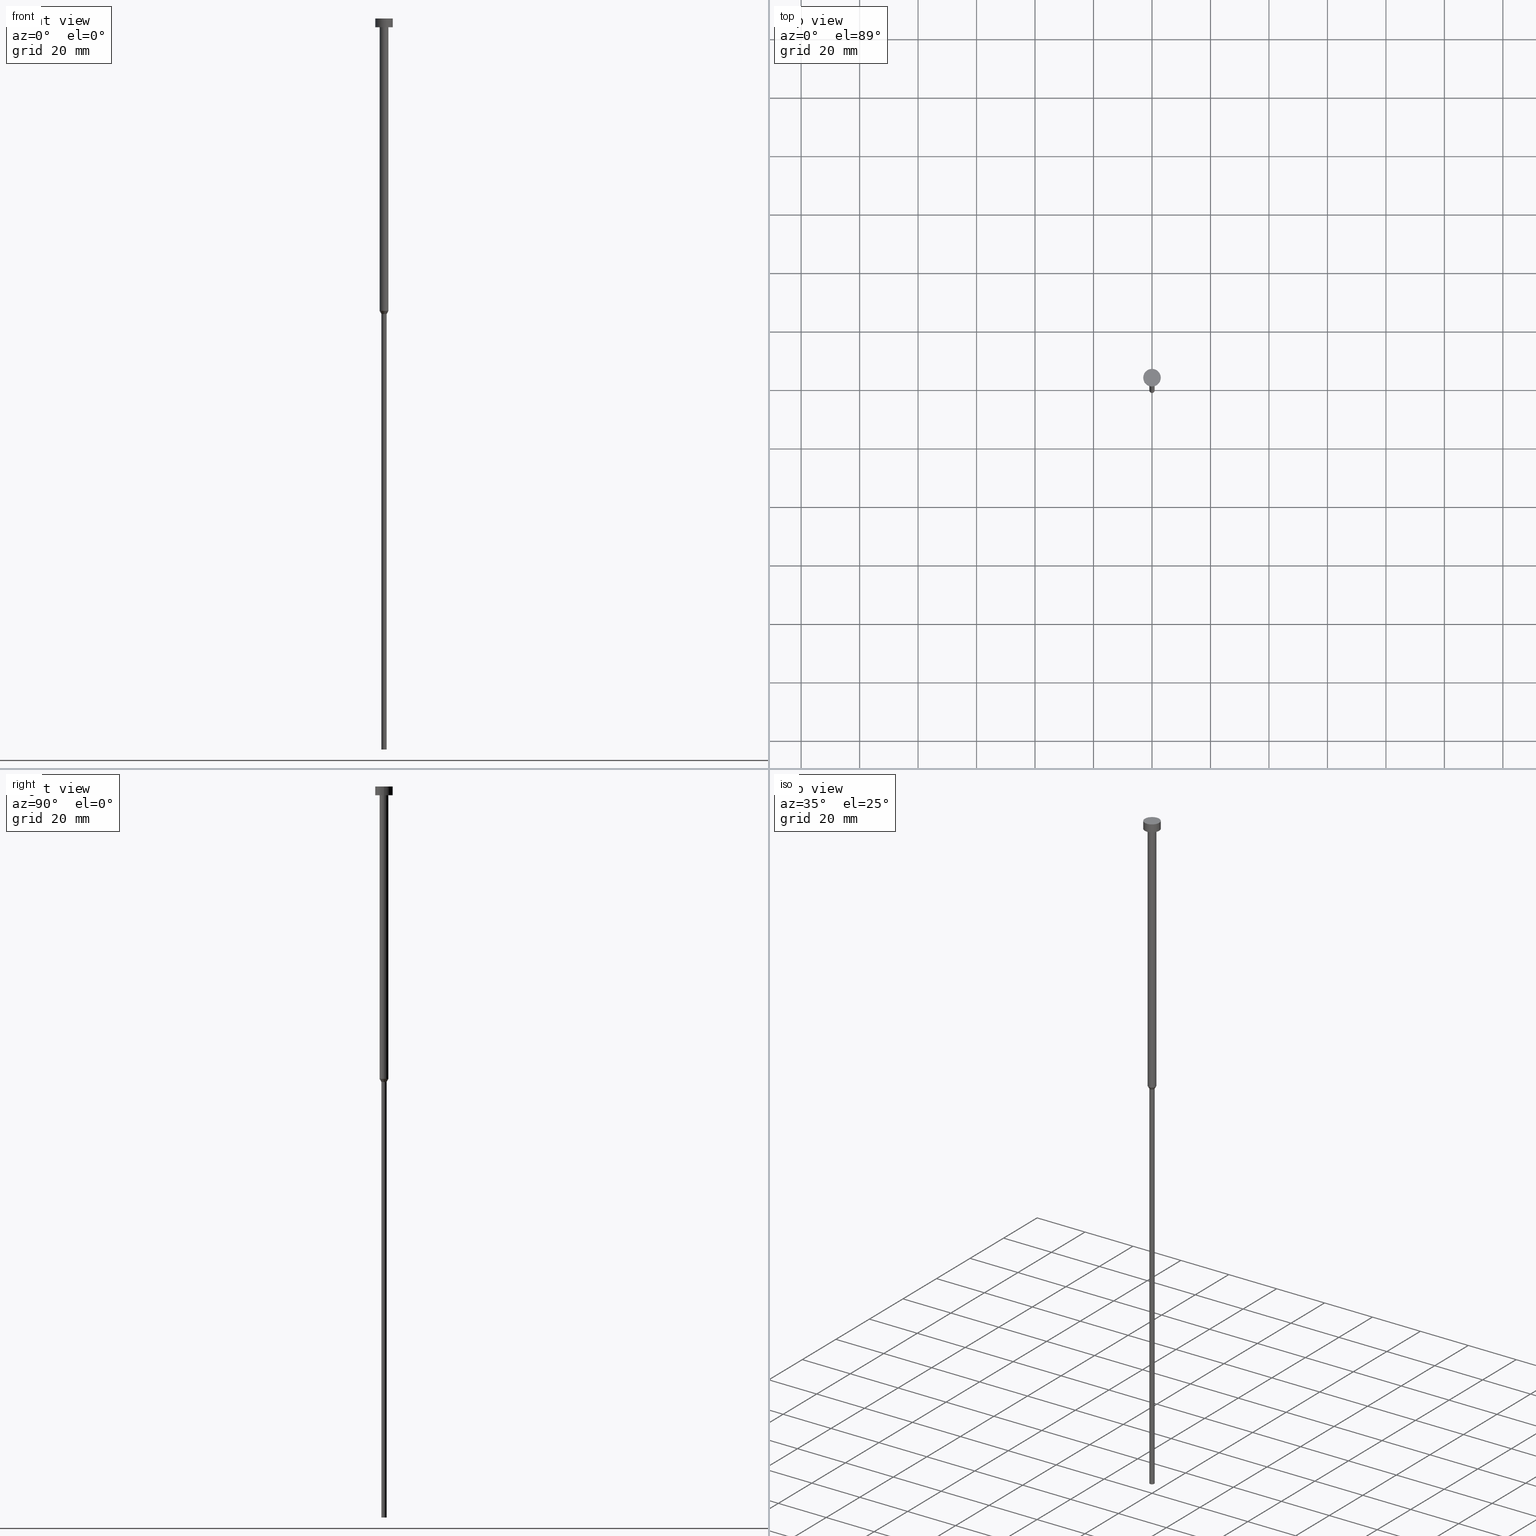
[diagram: canonical four-view strip — front | top / right | iso, engineering-drawing reading convention]
A machine part, canonical four-view strip (front | top / right | iso — engineering-drawing reading convention). The complete STEP part file that produces these views, byte-faithful:
ISO-10303-21;
HEADER;
FILE_DESCRIPTION (( 'STEP AP203' ),
    '1' );
FILE_NAME ('4469.STEP',
    '2023-02-13T09:01:37',
    ( '' ),
    ( '' ),
    'SwSTEP 2.0',
    'SolidWorks 2019',
    '' );
FILE_SCHEMA (( 'CONFIG_CONTROL_DESIGN' ));
ENDSEC;

DATA;
#1 = EDGE_CURVE ( 'NONE', #18, #316, #262, .T. ) ;
#2 = DIRECTION ( 'NONE',  ( -0.000000000000000000, -0.000000000000000000, 1.000000000000000000 ) ) ;
#3 = DIRECTION ( 'NONE',  ( 1.000000000000000000, 0.000000000000000000, 0.000000000000000000 ) ) ;
#4 = DIRECTION ( 'NONE',  ( -0.000000000000000000, -0.000000000000000000, 1.000000000000000000 ) ) ;
#5 = CARTESIAN_POINT ( 'NONE',  ( -3.000000000000000000, 3.673940397442059868E-16, -3.673940397442059868E-16 ) ) ;
#6 = AXIS2_PLACEMENT_3D ( 'NONE', #203, #299, #3 ) ;
#7 = CARTESIAN_POINT ( 'NONE',  ( 0.000000000000000000, 0.000000000000000000, -100.0000000000000000 ) ) ;
#8 = VERTEX_POINT ( 'NONE', #147 ) ;
#9 = MANIFOLD_SOLID_BREP ( 'Rotovat1', #232 ) ;
#10 = PERSON_AND_ORGANIZATION_ROLE ( 'design_supplier' ) ;
#11 = ADVANCED_FACE ( 'NONE', ( #267 ), #201, .T. ) ;
#12 = DIRECTION ( 'NONE',  ( -0.000000000000000000, -0.000000000000000000, 1.000000000000000000 ) ) ;
#13 = AXIS2_PLACEMENT_3D ( 'NONE', #258, #12, #342 ) ;
#14 = ORIENTED_EDGE ( 'NONE', *, *, #220, .F. ) ;
#15 = VECTOR ( 'NONE', #135, 1000.000000000000000 ) ;
#16 = EDGE_LOOP ( 'NONE', ( #101, #68 ) ) ;
#17 = ADVANCED_FACE ( 'NONE', ( #223 ), #93, .T. ) ;
#18 = VERTEX_POINT ( 'NONE', #205 ) ;
#19 = SHAPE_DEFINITION_REPRESENTATION ( #22, #162 ) ;
#20 = DIRECTION ( 'NONE',  ( -0.000000000000000000, -0.000000000000000000, 1.000000000000000000 ) ) ;
#21 = CARTESIAN_POINT ( 'NONE',  ( 0.000000000000000000, 0.000000000000000000, -250.0000000000000000 ) ) ;
#22 = PRODUCT_DEFINITION_SHAPE ( 'NONE', 'NONE',  #284 ) ;
#23 = ADVANCED_FACE ( 'NONE', ( #320, #272 ), #80, .T. ) ;
#24 = DIRECTION ( 'NONE',  ( -0.000000000000000000, -0.000000000000000000, 1.000000000000000000 ) ) ;
#25 = DIRECTION ( 'NONE',  ( -0.000000000000000000, -0.000000000000000000, 1.000000000000000000 ) ) ;
#26 = VECTOR ( 'NONE', #28, 1000.000000000000227 ) ;
#27 = AXIS2_PLACEMENT_3D ( 'NONE', #250, #116, #89 ) ;
#28 = DIRECTION ( 'NONE',  ( -0.5000000000000002220, 6.123233995736768501E-17, 0.8660254037844384856 ) ) ;
#29 = DIRECTION ( 'NONE',  ( 1.000000000000000000, 0.000000000000000000, 0.000000000000000000 ) ) ;
#30 = DIRECTION ( 'NONE',  ( -0.000000000000000000, -0.000000000000000000, 1.000000000000000000 ) ) ;
#31 = ORIENTED_EDGE ( 'NONE', *, *, #99, .T. ) ;
#32 = PERSON_AND_ORGANIZATION ( #44, #285 ) ;
#33 = CARTESIAN_POINT ( 'NONE',  ( 0.000000000000000000, 0.000000000000000000, 0.000000000000000000 ) ) ;
#34 = PERSON_AND_ORGANIZATION ( #44, #285 ) ;
#35 = CARTESIAN_POINT ( 'NONE',  ( -0.9000000000000000222, 1.102182119232617788E-16, 0.000000000000000000 ) ) ;
#36 = EDGE_LOOP ( 'NONE', ( #287, #125 ) ) ;
#37 = PERSON_AND_ORGANIZATION ( #44, #285 ) ;
#38 = CIRCLE ( 'NONE', #182, 1.500000000000000000 ) ;
#39 = ORIENTED_EDGE ( 'NONE', *, *, #174, .F. ) ;
#40 = EDGE_CURVE ( 'NONE', #316, #124, #354, .T. ) ;
#41 = COORDINATED_UNIVERSAL_TIME_OFFSET ( 1, 0, .AHEAD. ) ;
#42 = ORIENTED_EDGE ( 'NONE', *, *, #128, .F. ) ;
#43 = CYLINDRICAL_SURFACE ( 'NONE', #127, 0.9000000000000000222 ) ;
#44 = PERSON ( 'NEUR�EN�', 'NEUR�EN�', 'NEUR�EN�', ('NEUR�EN�'), ('NEUR�EN�'), ('NEUR�EN�') ) ;
#45 = DIRECTION ( 'NONE',  ( 1.000000000000000000, 0.000000000000000000, 0.000000000000000000 ) ) ;
#46 = APPROVAL_PERSON_ORGANIZATION ( #159, #301, #94 ) ;
#47 = DIRECTION ( 'NONE',  ( 1.000000000000000000, 0.000000000000000000, 0.000000000000000000 ) ) ;
#48 = ORIENTED_EDGE ( 'NONE', *, *, #65, .F. ) ;
#49 = VECTOR ( 'NONE', #82, 1000.000000000000000 ) ;
#50 = DIRECTION ( 'NONE',  ( 1.000000000000000000, 0.000000000000000000, 0.000000000000000000 ) ) ;
#51 = CONICAL_SURFACE ( 'NONE', #102, 1.500000000000000000, 0.5235987755982991487 ) ;
#52 = APPROVAL ( #263, 'NEUR�EN�' ) ;
#53 = CARTESIAN_POINT ( 'NONE',  ( 0.9000000000000000222, 0.000000000000000000, -101.0392304845413349 ) ) ;
#54 = EDGE_CURVE ( 'NONE', #291, #18, #180, .T. ) ;
#55 = AXIS2_PLACEMENT_3D ( 'NONE', #153, #25, #152 ) ;
#56 = CARTESIAN_POINT ( 'NONE',  ( 0.000000000000000000, 0.000000000000000000, -250.0000000000000000 ) ) ;
#57 = AXIS2_PLACEMENT_3D ( 'NONE', #214, #187, #29 ) ;
#58 = ORIENTED_EDGE ( 'NONE', *, *, #1, .F. ) ;
#59 = CARTESIAN_POINT ( 'NONE',  ( 0.000000000000000000, 0.000000000000000000, -3.673940397442059868E-16 ) ) ;
#60 = ADVANCED_FACE ( 'NONE', ( #241 ), #355, .T. ) ;
#61 = AXIS2_PLACEMENT_3D ( 'NONE', #71, #308, #190 ) ;
#62 = EDGE_LOOP ( 'NONE', ( #31, #72, #230, #39 ) ) ;
#63 = LINE ( 'NONE', #183, #97 ) ;
#64 = CALENDAR_DATE ( 2023, 13, 2 ) ;
#65 = EDGE_CURVE ( 'NONE', #18, #98, #129, .T. ) ;
#66 = CC_DESIGN_SECURITY_CLASSIFICATION ( #139, ( #155 ) ) ;
#67 =( NAMED_UNIT ( * ) SI_UNIT ( $, .STERADIAN. ) SOLID_ANGLE_UNIT ( ) );
#68 = ORIENTED_EDGE ( 'NONE', *, *, #193, .T. ) ;
#69 = PERSON_AND_ORGANIZATION ( #44, #285 ) ;
#70 = CARTESIAN_POINT ( 'NONE',  ( 0.9000000000000000222, 0.000000000000000000, -250.0000000000000000 ) ) ;
#71 = CARTESIAN_POINT ( 'NONE',  ( 0.000000000000000000, 0.000000000000000000, -101.0392304845413349 ) ) ;
#72 = ORIENTED_EDGE ( 'NONE', *, *, #128, .T. ) ;
#73 = EDGE_LOOP ( 'NONE', ( #138, #255, #295, #142 ) ) ;
#74 = LOCAL_TIME ( 10, 1, 37.00000000000000000, #216 ) ;
#75 = VERTEX_POINT ( 'NONE', #83 ) ;
#76 = APPLICATION_CONTEXT ( 'configuration controlled 3d designs of mechanical parts and assemblies' ) ;
#77 = DIRECTION ( 'NONE',  ( 1.000000000000000000, 0.000000000000000000, 0.000000000000000000 ) ) ;
#78 = CC_DESIGN_PERSON_AND_ORGANIZATION_ASSIGNMENT ( #248, #252, ( #151 ) ) ;
#79 = CC_DESIGN_APPROVAL ( #181, ( #284 ) ) ;
#80 = PLANE ( 'NONE',  #243 ) ;
#81 = EDGE_CURVE ( 'NONE', #8, #110, #341, .T. ) ;
#82 = DIRECTION ( 'NONE',  ( -0.000000000000000000, -0.000000000000000000, 1.000000000000000000 ) ) ;
#83 = CARTESIAN_POINT ( 'NONE',  ( -3.000000000000000000, 3.673940397442059868E-16, -3.000000000000000888 ) ) ;
#84 = EDGE_CURVE ( 'NONE', #110, #8, #103, .T. ) ;
#85 = CARTESIAN_POINT ( 'NONE',  ( 0.000000000000000000, 0.000000000000000000, 0.000000000000000000 ) ) ;
#86 = AXIS2_PLACEMENT_3D ( 'NONE', #234, #351, #77 ) ;
#87 = DATE_TIME_ROLE ( 'creation_date' ) ;
#88 = AXIS2_PLACEMENT_3D ( 'NONE', #225, #169, #45 ) ;
#89 = DIRECTION ( 'NONE',  ( 1.000000000000000000, 0.000000000000000000, 0.000000000000000000 ) ) ;
#90 = APPROVAL_STATUS ( 'not_yet_approved' ) ;
#91 = CYLINDRICAL_SURFACE ( 'NONE', #326, 3.000000000000000000 ) ;
#92 = ORIENTED_EDGE ( 'NONE', *, *, #40, .T. ) ;
#93 = CYLINDRICAL_SURFACE ( 'NONE', #13, 0.9000000000000000222 ) ;
#94 = APPROVAL_ROLE ( '' ) ;
#95 = AXIS2_PLACEMENT_3D ( 'NONE', #21, #105, #156 ) ;
#96 = EDGE_LOOP ( 'NONE', ( #14, #161, #219, #346 ) ) ;
#97 = VECTOR ( 'NONE', #4, 1000.000000000000000 ) ;
#98 = VERTEX_POINT ( 'NONE', #246 ) ;
#99 = EDGE_CURVE ( 'NONE', #300, #75, #292, .T. ) ;
#100 = ORIENTED_EDGE ( 'NONE', *, *, #220, .T. ) ;
#101 = ORIENTED_EDGE ( 'NONE', *, *, #215, .T. ) ;
#102 = AXIS2_PLACEMENT_3D ( 'NONE', #242, #2, #249 ) ;
#103 = CIRCLE ( 'NONE', #86, 0.9000000000000000222 ) ;
#104 = DIRECTION ( 'NONE',  ( -0.000000000000000000, -0.000000000000000000, 1.000000000000000000 ) ) ;
#105 = DIRECTION ( 'NONE',  ( 0.000000000000000000, 0.000000000000000000, -1.000000000000000000 ) ) ;
#106 = DIRECTION ( 'NONE',  ( -0.000000000000000000, -0.000000000000000000, 1.000000000000000000 ) ) ;
#107 = AXIS2_PLACEMENT_3D ( 'NONE', #294, #120, #47 ) ;
#108 = AXIS2_PLACEMENT_3D ( 'NONE', #33, #106, #136 ) ;
#109 = CARTESIAN_POINT ( 'NONE',  ( 0.000000000000000000, 0.000000000000000000, -3.673940397442059868E-16 ) ) ;
#110 = VERTEX_POINT ( 'NONE', #70 ) ;
#111 = CC_DESIGN_PERSON_AND_ORGANIZATION_ASSIGNMENT ( #69, #165, ( #139 ) ) ;
#112 = DIRECTION ( 'NONE',  ( -0.000000000000000000, -0.000000000000000000, 1.000000000000000000 ) ) ;
#113 = DIRECTION ( 'NONE',  ( 1.000000000000000000, 0.000000000000000000, 0.000000000000000000 ) ) ;
#114 = ADVANCED_FACE ( 'NONE', ( #353 ), #43, .T. ) ;
#115 = LOCAL_TIME ( 10, 1, 37.00000000000000000, #118 ) ;
#116 = DIRECTION ( 'NONE',  ( -0.000000000000000000, -0.000000000000000000, 1.000000000000000000 ) ) ;
#117 = EDGE_LOOP ( 'NONE', ( #283, #196, #304, #58 ) ) ;
#118 = COORDINATED_UNIVERSAL_TIME_OFFSET ( 1, 0, .AHEAD. ) ;
#119 = DATE_AND_TIME ( #336, #74 ) ;
#120 = DIRECTION ( 'NONE',  ( -0.000000000000000000, -0.000000000000000000, 1.000000000000000000 ) ) ;
#121 = AXIS2_PLACEMENT_3D ( 'NONE', #257, #140, #146 ) ;
#122 = ORIENTED_EDGE ( 'NONE', *, *, #123, .F. ) ;
#123 = EDGE_CURVE ( 'NONE', #144, #316, #237, .T. ) ;
#124 = VERTEX_POINT ( 'NONE', #131 ) ;
#125 = ORIENTED_EDGE ( 'NONE', *, *, #157, .T. ) ;
#126 = APPROVAL_DATE_TIME ( #200, #52 ) ;
#127 = AXIS2_PLACEMENT_3D ( 'NONE', #229, #231, #50 ) ;
#128 = EDGE_CURVE ( 'NONE', #75, #280, #297, .T. ) ;
#129 = LINE ( 'NONE', #323, #134 ) ;
#130 = AXIS2_PLACEMENT_3D ( 'NONE', #186, #325, #340 ) ;
#131 = CARTESIAN_POINT ( 'NONE',  ( 1.500000000000000000, 0.000000000000000000, -3.000000000000000888 ) ) ;
#132 = PRODUCT_RELATED_PRODUCT_CATEGORY ( 'detail', '', ( #151 ) ) ;
#133 = CARTESIAN_POINT ( 'NONE',  ( -0.9000000000000000222, 1.102182119232617788E-16, -101.0392304845413349 ) ) ;
#134 = VECTOR ( 'NONE', #210, 1000.000000000000000 ) ;
#135 = DIRECTION ( 'NONE',  ( -0.000000000000000000, -0.000000000000000000, 1.000000000000000000 ) ) ;
#136 = DIRECTION ( 'NONE',  ( 1.000000000000000000, 0.000000000000000000, 0.000000000000000000 ) ) ;
#137 = ADVANCED_FACE ( 'NONE', ( #154 ), #313, .T. ) ;
#138 = ORIENTED_EDGE ( 'NONE', *, *, #198, .T. ) ;
#139 = SECURITY_CLASSIFICATION ( '', '', #260 ) ;
#140 = DIRECTION ( 'NONE',  ( -0.000000000000000000, -0.000000000000000000, 1.000000000000000000 ) ) ;
#141 = APPROVAL_DATE_TIME ( #143, #181 ) ;
#142 = ORIENTED_EDGE ( 'NONE', *, *, #40, .F. ) ;
#143 = DATE_AND_TIME ( #64, #254 ) ;
#144 = VERTEX_POINT ( 'NONE', #53 ) ;
#145 = VERTEX_POINT ( 'NONE', #207 ) ;
#146 = DIRECTION ( 'NONE',  ( 1.000000000000000000, 0.000000000000000000, 0.000000000000000000 ) ) ;
#147 = CARTESIAN_POINT ( 'NONE',  ( -0.9000000000000000222, 1.102182119232617788E-16, -250.0000000000000000 ) ) ;
#148 = UNCERTAINTY_MEASURE_WITH_UNIT (LENGTH_MEASURE( 1.000000000000000082E-05 ), #293, 'distance_accuracy_value', 'NONE');
#149 = CC_DESIGN_PERSON_AND_ORGANIZATION_ASSIGNMENT ( #188, #10, ( #155 ) ) ;
#150 = ORIENTED_EDGE ( 'NONE', *, *, #54, .T. ) ;
#151 = PRODUCT ( '4469', '4469', '', ( #330 ) ) ;
#152 = DIRECTION ( 'NONE',  ( 1.000000000000000000, 0.000000000000000000, 0.000000000000000000 ) ) ;
#153 = CARTESIAN_POINT ( 'NONE',  ( 0.000000000000000000, 0.000000000000000000, -100.0000000000000000 ) ) ;
#154 = FACE_OUTER_BOUND ( 'NONE', #117, .T. ) ;
#155 = PRODUCT_DEFINITION_FORMATION_WITH_SPECIFIED_SOURCE ( 'LIBOVOLN�', '', #151, .NOT_KNOWN. ) ;
#156 = DIRECTION ( 'NONE',  ( -1.000000000000000000, 0.000000000000000000, -0.000000000000000000 ) ) ;
#157 = EDGE_CURVE ( 'NONE', #98, #124, #202, .T. ) ;
#158 = DIRECTION ( 'NONE',  ( -0.000000000000000000, -0.000000000000000000, 1.000000000000000000 ) ) ;
#159 = PERSON_AND_ORGANIZATION ( #44, #285 ) ;
#160 = DIRECTION ( 'NONE',  ( 1.000000000000000000, 0.000000000000000000, 0.000000000000000000 ) ) ;
#161 = ORIENTED_EDGE ( 'NONE', *, *, #81, .T. ) ;
#162 = ADVANCED_BREP_SHAPE_REPRESENTATION ( '4469', ( #9, #6 ), #298 ) ;
#163 = APPROVAL_ROLE ( '' ) ;
#164 = EDGE_LOOP ( 'NONE', ( #264, #150, #228, #122 ) ) ;
#165 = PERSON_AND_ORGANIZATION_ROLE ( 'classification_officer' ) ;
#166 = CC_DESIGN_PERSON_AND_ORGANIZATION_ASSIGNMENT ( #34, #286, ( #155 ) ) ;
#167 = LINE ( 'NONE', #172, #206 ) ;
#168 = EDGE_LOOP ( 'NONE', ( #48, #345, #92, #311 ) ) ;
#169 = DIRECTION ( 'NONE',  ( -0.000000000000000000, -0.000000000000000000, 1.000000000000000000 ) ) ;
#170 = EDGE_LOOP ( 'NONE', ( #226, #328 ) ) ;
#171 = CIRCLE ( 'NONE', #194, 3.000000000000000000 ) ;
#172 = CARTESIAN_POINT ( 'NONE',  ( 0.9000000000000000222, 0.000000000000000000, 0.000000000000000000 ) ) ;
#173 = EDGE_LOOP ( 'NONE', ( #261, #100, #309, #191 ) ) ;
#174 = EDGE_CURVE ( 'NONE', #300, #145, #63, .T. ) ;
#175 = CARTESIAN_POINT ( 'NONE',  ( 0.000000000000000000, 0.000000000000000000, -1.836970198721029934E-16 ) ) ;
#176 = AXIS2_PLACEMENT_3D ( 'NONE', #59, #30, #160 ) ;
#177 = ADVANCED_FACE ( 'NONE', ( #332 ), #303, .T. ) ;
#178 = CARTESIAN_POINT ( 'NONE',  ( 0.000000000000000000, -3.000000000000000000, -3.000000000000000888 ) ) ;
#179 = DIRECTION ( 'NONE',  ( 1.000000000000000000, 0.000000000000000000, 0.000000000000000000 ) ) ;
#180 = LINE ( 'NONE', #274, #26 ) ;
#181 = APPROVAL ( #90, 'NEUR�EN�' ) ;
#182 = AXIS2_PLACEMENT_3D ( 'NONE', #7, #158, #307 ) ;
#183 = CARTESIAN_POINT ( 'NONE',  ( 3.000000000000000000, 0.000000000000000000, 0.000000000000000000 ) ) ;
#184 = DATE_AND_TIME ( #213, #233 ) ;
#185 = DIRECTION ( 'NONE',  ( 1.000000000000000000, 0.000000000000000000, 0.000000000000000000 ) ) ;
#186 = CARTESIAN_POINT ( 'NONE',  ( 0.000000000000000000, 0.000000000000000000, -3.000000000000000888 ) ) ;
#187 = DIRECTION ( 'NONE',  ( -0.000000000000000000, -0.000000000000000000, 1.000000000000000000 ) ) ;
#188 = PERSON_AND_ORGANIZATION ( #44, #285 ) ;
#189 = DIRECTION ( 'NONE',  ( -0.000000000000000000, -0.000000000000000000, 1.000000000000000000 ) ) ;
#190 = DIRECTION ( 'NONE',  ( 1.000000000000000000, 0.000000000000000000, 0.000000000000000000 ) ) ;
#191 = ORIENTED_EDGE ( 'NONE', *, *, #306, .F. ) ;
#192 = AXIS2_PLACEMENT_3D ( 'NONE', #175, #269, #221 ) ;
#193 = EDGE_CURVE ( 'NONE', #280, #145, #171, .T. ) ;
#194 = AXIS2_PLACEMENT_3D ( 'NONE', #109, #282, #275 ) ;
#195 = AXIS2_PLACEMENT_3D ( 'NONE', #239, #104, #179 ) ;
#196 = ORIENTED_EDGE ( 'NONE', *, *, #329, .T. ) ;
#197 = DIRECTION ( 'NONE',  ( -0.000000000000000000, -0.000000000000000000, 1.000000000000000000 ) ) ;
#198 = EDGE_CURVE ( 'NONE', #316, #18, #38, .T. ) ;
#199 = ORIENTED_EDGE ( 'NONE', *, *, #193, .F. ) ;
#200 = DATE_AND_TIME ( #344, #319 ) ;
#201 = PLANE ( 'NONE',  #192 ) ;
#202 = CIRCLE ( 'NONE', #195, 1.500000000000000000 ) ;
#203 = CARTESIAN_POINT ( 'NONE',  ( 0.000000000000000000, 0.000000000000000000, 0.000000000000000000 ) ) ;
#204 = AXIS2_PLACEMENT_3D ( 'NONE', #56, #20, #235 ) ;
#205 = CARTESIAN_POINT ( 'NONE',  ( -1.500000000000000000, 1.836970198721029934E-16, -100.0000000000000000 ) ) ;
#206 = VECTOR ( 'NONE', #197, 1000.000000000000000 ) ;
#207 = CARTESIAN_POINT ( 'NONE',  ( 3.000000000000000000, 0.000000000000000000, -3.673940397442059868E-16 ) ) ;
#208 = CARTESIAN_POINT ( 'NONE',  ( 1.500000000000000000, 0.000000000000000000, 0.000000000000000000 ) ) ;
#209 = CC_DESIGN_DATE_AND_TIME_ASSIGNMENT ( #119, #87, ( #284 ) ) ;
#210 = DIRECTION ( 'NONE',  ( -0.000000000000000000, -0.000000000000000000, 1.000000000000000000 ) ) ;
#211 = CYLINDRICAL_SURFACE ( 'NONE', #108, 1.500000000000000000 ) ;
#212 = CIRCLE ( 'NONE', #176, 3.000000000000000000 ) ;
#213 = CALENDAR_DATE ( 2023, 13, 2 ) ;
#214 = CARTESIAN_POINT ( 'NONE',  ( 0.000000000000000000, 0.000000000000000000, -3.000000000000000888 ) ) ;
#215 = EDGE_CURVE ( 'NONE', #145, #280, #212, .T. ) ;
#216 = COORDINATED_UNIVERSAL_TIME_OFFSET ( 1, 0, .AHEAD. ) ;
#217 = APPLICATION_PROTOCOL_DEFINITION ( 'international standard', 'config_control_design', 1994, #289 ) ;
#218 = FACE_OUTER_BOUND ( 'NONE', #73, .T. ) ;
#219 = ORIENTED_EDGE ( 'NONE', *, *, #306, .T. ) ;
#220 = EDGE_CURVE ( 'NONE', #8, #291, #279, .T. ) ;
#221 = DIRECTION ( 'NONE',  ( 1.000000000000000000, 0.000000000000000000, 0.000000000000000000 ) ) ;
#222 = APPLICATION_PROTOCOL_DEFINITION ( 'international standard', 'config_control_design', 1994, #76 ) ;
#223 = FACE_OUTER_BOUND ( 'NONE', #173, .T. ) ;
#224 = APPROVAL_ROLE ( '' ) ;
#225 = CARTESIAN_POINT ( 'NONE',  ( 0.000000000000000000, 0.000000000000000000, -101.0392304845413349 ) ) ;
#226 = ORIENTED_EDGE ( 'NONE', *, *, #99, .F. ) ;
#227 = COORDINATED_UNIVERSAL_TIME_OFFSET ( 1, 0, .AHEAD. ) ;
#228 = ORIENTED_EDGE ( 'NONE', *, *, #198, .F. ) ;
#229 = CARTESIAN_POINT ( 'NONE',  ( 0.000000000000000000, 0.000000000000000000, 0.000000000000000000 ) ) ;
#230 = ORIENTED_EDGE ( 'NONE', *, *, #215, .F. ) ;
#231 = DIRECTION ( 'NONE',  ( -0.000000000000000000, -0.000000000000000000, 1.000000000000000000 ) ) ;
#232 = CLOSED_SHELL ( 'NONE', ( #177, #265, #240, #17, #60, #114, #137, #236, #23, #290, #11 ) ) ;
#233 = LOCAL_TIME ( 10, 1, 37.00000000000000000, #41 ) ;
#234 = CARTESIAN_POINT ( 'NONE',  ( 0.000000000000000000, 0.000000000000000000, -250.0000000000000000 ) ) ;
#235 = DIRECTION ( 'NONE',  ( 1.000000000000000000, 0.000000000000000000, 0.000000000000000000 ) ) ;
#236 = ADVANCED_FACE ( 'NONE', ( #331 ), #337, .T. ) ;
#237 = LINE ( 'NONE', #324, #333 ) ;
#238 = CARTESIAN_POINT ( 'NONE',  ( -3.000000000000000000, 3.673940397442059868E-16, 0.000000000000000000 ) ) ;
#239 = CARTESIAN_POINT ( 'NONE',  ( 0.000000000000000000, 0.000000000000000000, -3.000000000000000888 ) ) ;
#240 = ADVANCED_FACE ( 'NONE', ( #247 ), #51, .T. ) ;
#241 = FACE_OUTER_BOUND ( 'NONE', #288, .T. ) ;
#242 = CARTESIAN_POINT ( 'NONE',  ( 0.000000000000000000, 0.000000000000000000, -100.0000000000000000 ) ) ;
#243 = AXIS2_PLACEMENT_3D ( 'NONE', #178, #273, #322 ) ;
#244 = CARTESIAN_POINT ( 'NONE',  ( 3.000000000000000000, 0.000000000000000000, -3.000000000000000888 ) ) ;
#245 = ORIENTED_EDGE ( 'NONE', *, *, #174, .T. ) ;
#246 = CARTESIAN_POINT ( 'NONE',  ( -1.500000000000000000, 1.836970198721029934E-16, -3.000000000000000888 ) ) ;
#247 = FACE_OUTER_BOUND ( 'NONE', #164, .T. ) ;
#248 = PERSON_AND_ORGANIZATION ( #44, #285 ) ;
#249 = DIRECTION ( 'NONE',  ( 1.000000000000000000, 0.000000000000000000, 0.000000000000000000 ) ) ;
#250 = CARTESIAN_POINT ( 'NONE',  ( 0.000000000000000000, 0.000000000000000000, 0.000000000000000000 ) ) ;
#251 = CIRCLE ( 'NONE', #121, 3.000000000000000000 ) ;
#252 = PERSON_AND_ORGANIZATION_ROLE ( 'design_owner' ) ;
#253 = CC_DESIGN_PERSON_AND_ORGANIZATION_ASSIGNMENT ( #37, #278, ( #284 ) ) ;
#254 = LOCAL_TIME ( 10, 1, 37.00000000000000000, #338 ) ;
#255 = ORIENTED_EDGE ( 'NONE', *, *, #65, .T. ) ;
#256 = CALENDAR_DATE ( 2023, 13, 2 ) ;
#257 = CARTESIAN_POINT ( 'NONE',  ( 0.000000000000000000, 0.000000000000000000, -3.000000000000000888 ) ) ;
#258 = CARTESIAN_POINT ( 'NONE',  ( 0.000000000000000000, 0.000000000000000000, 0.000000000000000000 ) ) ;
#259 = DESIGN_CONTEXT ( 'detailed design', #289, 'design' ) ;
#260 = SECURITY_CLASSIFICATION_LEVEL ( 'unclassified' ) ;
#261 = ORIENTED_EDGE ( 'NONE', *, *, #84, .T. ) ;
#262 = CIRCLE ( 'NONE', #107, 1.500000000000000000 ) ;
#263 = APPROVAL_STATUS ( 'not_yet_approved' ) ;
#264 = ORIENTED_EDGE ( 'NONE', *, *, #347, .T. ) ;
#265 = ADVANCED_FACE ( 'NONE', ( #218 ), #211, .T. ) ;
#266 =( NAMED_UNIT ( * ) PLANE_ANGLE_UNIT ( ) SI_UNIT ( $, .RADIAN. ) );
#267 = FACE_OUTER_BOUND ( 'NONE', #16, .T. ) ;
#268 = PERSON_AND_ORGANIZATION ( #44, #285 ) ;
#269 = DIRECTION ( 'NONE',  ( 0.000000000000000000, -0.000000000000000000, 1.000000000000000000 ) ) ;
#270 = EDGE_CURVE ( 'NONE', #124, #98, #271, .T. ) ;
#271 = CIRCLE ( 'NONE', #57, 1.500000000000000000 ) ;
#272 = FACE_OUTER_BOUND ( 'NONE', #170, .T. ) ;
#273 = DIRECTION ( 'NONE',  ( 0.000000000000000000, 0.000000000000000000, -1.000000000000000000 ) ) ;
#274 = CARTESIAN_POINT ( 'NONE',  ( -1.500000000000000000, 1.836970198721029934E-16, -100.0000000000000000 ) ) ;
#275 = DIRECTION ( 'NONE',  ( 1.000000000000000000, 0.000000000000000000, 0.000000000000000000 ) ) ;
#276 = CC_DESIGN_DATE_AND_TIME_ASSIGNMENT ( #184, #302, ( #139 ) ) ;
#277 = CC_DESIGN_APPROVAL ( #301, ( #155 ) ) ;
#278 = PERSON_AND_ORGANIZATION_ROLE ( 'creator' ) ;
#279 = LINE ( 'NONE', #35, #15 ) ;
#280 = VERTEX_POINT ( 'NONE', #5 ) ;
#281 = DATE_AND_TIME ( #256, #115 ) ;
#282 = DIRECTION ( 'NONE',  ( -0.000000000000000000, -0.000000000000000000, 1.000000000000000000 ) ) ;
#283 = ORIENTED_EDGE ( 'NONE', *, *, #54, .F. ) ;
#284 = PRODUCT_DEFINITION ( 'NEZN�M�', '', #155, #259 ) ;
#285 = ORGANIZATION ( 'NEUR�EN�', 'NEUR�EN�', '' ) ;
#286 = PERSON_AND_ORGANIZATION_ROLE ( 'creator' ) ;
#287 = ORIENTED_EDGE ( 'NONE', *, *, #270, .T. ) ;
#288 = EDGE_LOOP ( 'NONE', ( #339, #348 ) ) ;
#289 = APPLICATION_CONTEXT ( 'configuration controlled 3d designs of mechanical parts and assemblies' ) ;
#290 = ADVANCED_FACE ( 'NONE', ( #327 ), #91, .T. ) ;
#291 = VERTEX_POINT ( 'NONE', #133 ) ;
#292 = CIRCLE ( 'NONE', #130, 3.000000000000000000 ) ;
#293 =( LENGTH_UNIT ( ) NAMED_UNIT ( * ) SI_UNIT ( .MILLI., .METRE. ) );
#294 = CARTESIAN_POINT ( 'NONE',  ( 0.000000000000000000, 0.000000000000000000, -100.0000000000000000 ) ) ;
#295 = ORIENTED_EDGE ( 'NONE', *, *, #270, .F. ) ;
#296 = CIRCLE ( 'NONE', #88, 0.9000000000000000222 ) ;
#297 = LINE ( 'NONE', #238, #317 ) ;
#298 =( GEOMETRIC_REPRESENTATION_CONTEXT ( 3 ) GLOBAL_UNCERTAINTY_ASSIGNED_CONTEXT ( ( #148 ) ) GLOBAL_UNIT_ASSIGNED_CONTEXT ( ( #293, #266, #67 ) ) REPRESENTATION_CONTEXT ( 'NONE', 'WORKASPACE' ) );
#299 = DIRECTION ( 'NONE',  ( 0.000000000000000000, 0.000000000000000000, 1.000000000000000000 ) ) ;
#300 = VERTEX_POINT ( 'NONE', #244 ) ;
#301 = APPROVAL ( #305, 'NEUR�EN�' ) ;
#302 = DATE_TIME_ROLE ( 'classification_date' ) ;
#303 = CYLINDRICAL_SURFACE ( 'NONE', #334, 3.000000000000000000 ) ;
#304 = ORIENTED_EDGE ( 'NONE', *, *, #123, .T. ) ;
#305 = APPROVAL_STATUS ( 'not_yet_approved' ) ;
#306 = EDGE_CURVE ( 'NONE', #110, #144, #167, .T. ) ;
#307 = DIRECTION ( 'NONE',  ( 1.000000000000000000, 0.000000000000000000, 0.000000000000000000 ) ) ;
#308 = DIRECTION ( 'NONE',  ( -0.000000000000000000, -0.000000000000000000, 1.000000000000000000 ) ) ;
#309 = ORIENTED_EDGE ( 'NONE', *, *, #347, .F. ) ;
#310 = APPROVAL_DATE_TIME ( #281, #301 ) ;
#311 = ORIENTED_EDGE ( 'NONE', *, *, #157, .F. ) ;
#312 = CIRCLE ( 'NONE', #61, 0.9000000000000000222 ) ;
#313 = CONICAL_SURFACE ( 'NONE', #55, 1.500000000000000000, 0.5235987755982991487 ) ;
#314 = CARTESIAN_POINT ( 'NONE',  ( 1.500000000000000000, 0.000000000000000000, -100.0000000000000000 ) ) ;
#315 = EDGE_LOOP ( 'NONE', ( #42, #318, #245, #199 ) ) ;
#316 = VERTEX_POINT ( 'NONE', #314 ) ;
#317 = VECTOR ( 'NONE', #24, 1000.000000000000000 ) ;
#318 = ORIENTED_EDGE ( 'NONE', *, *, #321, .T. ) ;
#319 = LOCAL_TIME ( 10, 1, 37.00000000000000000, #227 ) ;
#320 = FACE_BOUND ( 'NONE', #36, .T. ) ;
#321 = EDGE_CURVE ( 'NONE', #75, #300, #251, .T. ) ;
#322 = DIRECTION ( 'NONE',  ( -1.000000000000000000, 0.000000000000000000, -0.000000000000000000 ) ) ;
#323 = CARTESIAN_POINT ( 'NONE',  ( -1.500000000000000000, 1.836970198721029934E-16, 0.000000000000000000 ) ) ;
#324 = CARTESIAN_POINT ( 'NONE',  ( 1.500000000000000000, 0.000000000000000000, -100.0000000000000000 ) ) ;
#325 = DIRECTION ( 'NONE',  ( -0.000000000000000000, -0.000000000000000000, 1.000000000000000000 ) ) ;
#326 = AXIS2_PLACEMENT_3D ( 'NONE', #85, #189, #113 ) ;
#327 = FACE_OUTER_BOUND ( 'NONE', #315, .T. ) ;
#328 = ORIENTED_EDGE ( 'NONE', *, *, #321, .F. ) ;
#329 = EDGE_CURVE ( 'NONE', #291, #144, #312, .T. ) ;
#330 = MECHANICAL_CONTEXT ( 'NONE', #76, 'mechanical' ) ;
#331 = FACE_OUTER_BOUND ( 'NONE', #168, .T. ) ;
#332 = FACE_OUTER_BOUND ( 'NONE', #62, .T. ) ;
#333 = VECTOR ( 'NONE', #352, 1000.000000000000227 ) ;
#334 = AXIS2_PLACEMENT_3D ( 'NONE', #335, #112, #185 ) ;
#335 = CARTESIAN_POINT ( 'NONE',  ( 0.000000000000000000, 0.000000000000000000, 0.000000000000000000 ) ) ;
#336 = CALENDAR_DATE ( 2023, 13, 2 ) ;
#337 = CYLINDRICAL_SURFACE ( 'NONE', #27, 1.500000000000000000 ) ;
#338 = COORDINATED_UNIVERSAL_TIME_OFFSET ( 1, 0, .AHEAD. ) ;
#339 = ORIENTED_EDGE ( 'NONE', *, *, #84, .F. ) ;
#340 = DIRECTION ( 'NONE',  ( 1.000000000000000000, 0.000000000000000000, 0.000000000000000000 ) ) ;
#341 = CIRCLE ( 'NONE', #204, 0.9000000000000000222 ) ;
#342 = DIRECTION ( 'NONE',  ( 1.000000000000000000, 0.000000000000000000, 0.000000000000000000 ) ) ;
#343 = CC_DESIGN_APPROVAL ( #52, ( #139 ) ) ;
#344 = CALENDAR_DATE ( 2023, 13, 2 ) ;
#345 = ORIENTED_EDGE ( 'NONE', *, *, #1, .T. ) ;
#346 = ORIENTED_EDGE ( 'NONE', *, *, #329, .F. ) ;
#347 = EDGE_CURVE ( 'NONE', #144, #291, #296, .T. ) ;
#348 = ORIENTED_EDGE ( 'NONE', *, *, #81, .F. ) ;
#349 = APPROVAL_PERSON_ORGANIZATION ( #32, #181, #163 ) ;
#350 = APPROVAL_PERSON_ORGANIZATION ( #268, #52, #224 ) ;
#351 = DIRECTION ( 'NONE',  ( -0.000000000000000000, -0.000000000000000000, 1.000000000000000000 ) ) ;
#352 = DIRECTION ( 'NONE',  ( 0.5000000000000002220, 0.000000000000000000, 0.8660254037844384856 ) ) ;
#353 = FACE_OUTER_BOUND ( 'NONE', #96, .T. ) ;
#354 = LINE ( 'NONE', #208, #49 ) ;
#355 = PLANE ( 'NONE',  #95 ) ;
ENDSEC;
END-ISO-10303-21;
